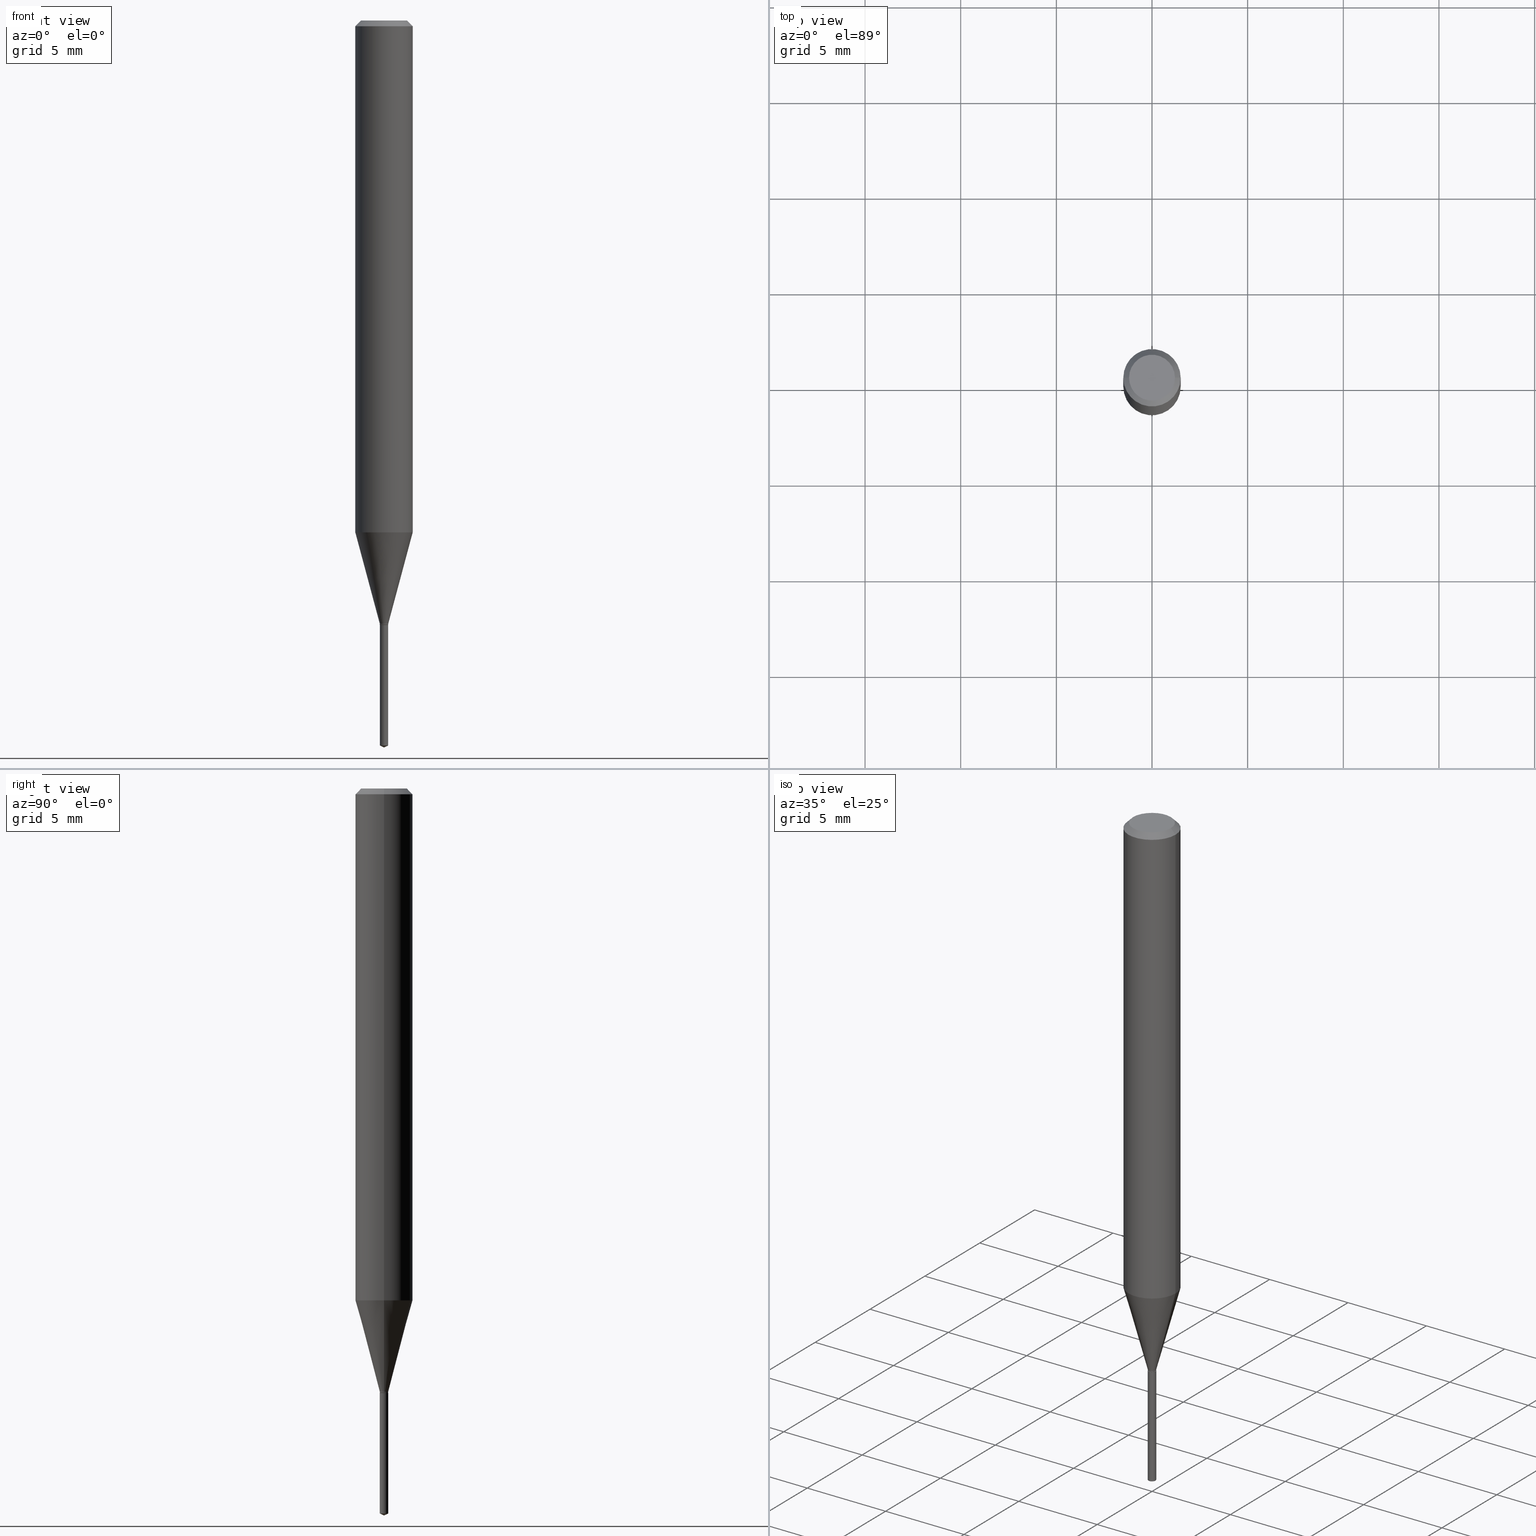
[diagram: canonical four-view strip — front | top / right | iso, engineering-drawing reading convention]
A machine part, canonical four-view strip (front | top / right | iso — engineering-drawing reading convention). The complete STEP part file that produces these views, byte-faithful:
ISO-10303-21;
HEADER;
FILE_DESCRIPTION (( 'STEP AP203' ),
    '1' );
FILE_NAME ('07763.STEP',
    '2024-04-24T02:30:58',
    ( '' ),
    ( '' ),
    'SwSTEP 2.0',
    'SolidWorks 2023',
    '' );
FILE_SCHEMA (( 'CONFIG_CONTROL_DESIGN' ));
ENDSEC;

DATA;
#1 = CARTESIAN_POINT ( 'NONE',  ( -9.261901597635378744E-28, 1.322371744356641908E-13, 37.87397874015748300 ) ) ;
#2 = EDGE_LOOP ( 'NONE', ( #78, #164, #421, #181 ) ) ;
#3 = FACE_OUTER_BOUND ( 'NONE', #88, .T. ) ;
#4 = DIRECTION ( 'NONE',  ( -6.982962677686268288E-15, -1.000000000000000000, 3.520397390770471619E-15 ) ) ;
#5 = ORIENTED_EDGE ( 'NONE', *, *, #402, .T. ) ;
#6 = LINE ( 'NONE', #241, #278 ) ;
#7 = EDGE_CURVE ( 'NONE', #167, #90, #198, .T. ) ;
#8 = EDGE_LOOP ( 'NONE', ( #195, #466 ) ) ;
#9 = CARTESIAN_POINT ( 'NONE',  ( 3.041185007371835914E-29, -4.342006192985336437E-15, -1.243600000000000039 ) ) ;
#10 = AXIS2_PLACEMENT_3D ( 'NONE', #406, #265, #228 ) ;
#11 = ORIENTED_EDGE ( 'NONE', *, *, #451, .F. ) ;
#12 = MECHANICAL_CONTEXT ( 'NONE', #200, 'mechanical' ) ;
#13 = DIRECTION ( 'NONE',  ( 1.000000000000000000, -6.982962677686220957E-15, 0.000000000000000000 ) ) ;
#14 = ORIENTED_EDGE ( 'NONE', *, *, #340, .T. ) ;
#15 = ORIENTED_EDGE ( 'NONE', *, *, #439, .F. ) ;
#16 = APPROVAL ( #322, 'UNSPECIFIED' ) ;
#17 = AXIS2_PLACEMENT_3D ( 'NONE', #289, #18, #62 ) ;
#18 = DIRECTION ( 'NONE',  ( -2.445468806185136597E-29, 3.491481338843145583E-15, 1.000000000000000000 ) ) ;
#19 = CIRCLE ( 'NONE', #369, 0.04724000000000000421 ) ;
#20 = PERSON_AND_ORGANIZATION_ROLE ( 'design_owner' ) ;
#21 = EDGE_CURVE ( 'NONE', #162, #383, #212, .T. ) ;
#22 = VERTEX_POINT ( 'NONE', #434 ) ;
#23 = APPROVAL_DATE_TIME ( #94, #16 ) ;
#24 = DIRECTION ( 'NONE',  ( -2.445468806185136597E-29, 3.491481338843145583E-15, 1.000000000000000000 ) ) ;
#25 = EDGE_CURVE ( 'NONE', #79, #383, #328, .T. ) ;
#26 = CYLINDRICAL_SURFACE ( 'NONE', #10, 0.008649999999999999703 ) ;
#27 = CONICAL_SURFACE ( 'NONE', #115, 0.008649999999999999703, 0.2617993877991500740 ) ;
#28 = DIRECTION ( 'NONE',  ( -0.7071067811866191821, 7.493145998870612907E-15, 0.7071067811864758523 ) ) ;
#29 = EDGE_CURVE ( 'NONE', #230, #90, #288, .T. ) ;
#30 = CARTESIAN_POINT ( 'NONE',  ( 4.132873053354867254E-48, -5.900647395337818946E-34, -1.690012582823346072E-19 ) ) ;
#31 = CARTESIAN_POINT ( 'NONE',  ( -6.040262716195577240E-17, -0.008650000000004345185, -1.244099999999999984 ) ) ;
#32 = AXIS2_PLACEMENT_3D ( 'NONE', #371, #264, #482 ) ;
#33 = AXIS2_PLACEMENT_3D ( 'NONE', #279, #347, #343 ) ;
#34 = CARTESIAN_POINT ( 'NONE',  ( -0.008649999999999999703, -4.276878190936301888E-15, -1.243600000000000039 ) ) ;
#35 = DIRECTION ( 'NONE',  ( 1.000000000000000000, -6.982962677686266711E-15, 4.876176775795936353E-29 ) ) ;
#36 = EDGE_CURVE ( 'NONE', #172, #383, #321, .T. ) ;
#37 = DIRECTION ( 'NONE',  ( -0.2588190451025213501, 5.211531920934551042E-15, 0.9659258262890682012 ) ) ;
#38 = VERTEX_POINT ( 'NONE', #473 ) ;
#39 = PRODUCT_RELATED_PRODUCT_CATEGORY ( 'detail', '', ( #68 ) ) ;
#40 = CARTESIAN_POINT ( 'NONE',  ( 2.576068185695256609E-29, -3.677942640361607017E-15, -1.053404639298528345 ) ) ;
#41 = EDGE_LOOP ( 'NONE', ( #141, #160, #205, #387 ) ) ;
#42 = CONICAL_SURFACE ( 'NONE', #297, 0.008149999999999999259, 0.7853981633975496424 ) ;
#43 = ADVANCED_FACE ( 'NONE', ( #64 ), #42, .T. ) ;
#44 = DIRECTION ( 'NONE',  ( -6.982962677686265133E-15, -1.000000000000000000, 0.000000000000000000 ) ) ;
#45 = CIRCLE ( 'NONE', #121, 0.008649999999999999703 ) ;
#46 = CC_DESIGN_SECURITY_CLASSIFICATION ( #87, ( #98 ) ) ;
#47 = DIRECTION ( 'NONE',  ( 0.7071067811866191821, -2.468850131083007662E-15, 0.7071067811864758523 ) ) ;
#48 = ORIENTED_EDGE ( 'NONE', *, *, #291, .T. ) ;
#49 = DIRECTION ( 'NONE',  ( -2.445468806185136597E-29, 3.491481338843145583E-15, 1.000000000000000000 ) ) ;
#50 = EDGE_LOOP ( 'NONE', ( #452, #461, #143, #102 ) ) ;
#51 = DIRECTION ( 'NONE',  ( -6.328713451373368590E-15, -0.9063077870366483824, 0.4226182617407027720 ) ) ;
#52 = AXIS2_PLACEMENT_3D ( 'NONE', #282, #424, #191 ) ;
#53 = ORGANIZATION ( 'UNSPECIFIED', 'UNSPECIFIED', '' ) ;
#54 = ORIENTED_EDGE ( 'NONE', *, *, #402, .F. ) ;
#55 = ORIENTED_EDGE ( 'NONE', *, *, #345, .T. ) ;
#56 = SECURITY_CLASSIFICATION_LEVEL ( 'unclassified' ) ;
#57 = APPROVAL ( #356, 'UNSPECIFIED' ) ;
#58 = ORIENTED_EDGE ( 'NONE', *, *, #7, .F. ) ;
#59 = DATE_AND_TIME ( #364, #412 ) ;
#60 = CIRCLE ( 'NONE', #251, 0.008649999999999999703 ) ;
#61 = CONICAL_SURFACE ( 'NONE', #185, 0.05904999999999999832, 0.7853981633974452814 ) ;
#62 = DIRECTION ( 'NONE',  ( 1.000000000000000000, -6.982962677686266711E-15, 0.000000000000000000 ) ) ;
#63 = CALENDAR_DATE ( 2024, 23, 4 ) ;
#64 = FACE_OUTER_BOUND ( 'NONE', #363, .T. ) ;
#65 = PERSON ( 'UNSPECIFIED', 'UNSPECIFIED', 'UNSPECIFIED', ('UNSPECIFIED'), ('UNSPECIFIED'), ('UNSPECIFIED') ) ;
#66 = PLANE ( 'NONE',  #96 ) ;
#67 = DIRECTION ( 'NONE',  ( -2.445468806185136597E-29, 3.491481338843145583E-15, 1.000000000000000000 ) ) ;
#68 = PRODUCT ( '07763', '07763', '', ( #12 ) ) ;
#69 = AXIS2_PLACEMENT_3D ( 'NONE', #489, #169, #13 ) ;
#70 = DIRECTION ( 'NONE',  ( -2.445468806185136597E-29, 3.491481338843145583E-15, 1.000000000000000000 ) ) ;
#71 = CARTESIAN_POINT ( 'NONE',  ( 0.008649999999999999703, -4.402408820147322827E-15, -1.243600000000000039 ) ) ;
#72 = CARTESIAN_POINT ( 'NONE',  ( -0.04724000000000000421, 3.504923541997677355E-16, -3.380025165670481712E-19 ) ) ;
#73 = DIMENSIONAL_EXPONENTS ( 1.000000000000000000, 0.000000000000000000, 0.000000000000000000, 0.000000000000000000, 0.000000000000000000, 0.000000000000000000, 0.000000000000000000 ) ;
#74 = CARTESIAN_POINT ( 'NONE',  ( 6.146194664328519809E-17, 0.008649999999995657690, -1.244099999999999984 ) ) ;
#75 = VECTOR ( 'NONE', #147, 39.37007874015748854 ) ;
#76 = ADVANCED_FACE ( 'NONE', ( #430 ), #477, .T. ) ;
#77 = DIRECTION ( 'NONE',  ( -2.445453018118844559E-29, 3.491503948252676758E-15, 1.000000000000000000 ) ) ;
#78 = ORIENTED_EDGE ( 'NONE', *, *, #135, .F. ) ;
#79 = VERTEX_POINT ( 'NONE', #72 ) ;
#80 = EDGE_CURVE ( 'NONE', #90, #167, #60, .T. ) ;
#81 = CYLINDRICAL_SURFACE ( 'NONE', #403, 0.008649999999999999703 ) ;
#82 = FACE_OUTER_BOUND ( 'NONE', #280, .T. ) ;
#83 = ORIENTED_EDGE ( 'NONE', *, *, #431, .T. ) ;
#84 = ADVANCED_FACE ( 'NONE', ( #401 ), #26, .T. ) ;
#85 = DIRECTION ( 'NONE',  ( -6.982962677686265133E-15, -1.000000000000000000, 0.000000000000000000 ) ) ;
#86 = CONICAL_SURFACE ( 'NONE', #259, 0.008649999999999999703, 0.2617993877991500740 ) ;
#87 = SECURITY_CLASSIFICATION ( '', '', #56 ) ;
#88 = EDGE_LOOP ( 'NONE', ( #11, #133, #93 ) ) ;
#89 = CARTESIAN_POINT ( 'NONE',  ( 3.648798017825315625E-29, -5.209527733608836381E-15, -1.492066438756959101 ) ) ;
#90 = VERTEX_POINT ( 'NONE', #74 ) ;
#91 = CARTESIAN_POINT ( 'NONE',  ( 3.648798017825315625E-29, -5.209527733608836381E-15, -1.492066438756959101 ) ) ;
#92 = EDGE_CURVE ( 'NONE', #383, #162, #442, .T. ) ;
#93 = ORIENTED_EDGE ( 'NONE', *, *, #368, .F. ) ;
#94 = DATE_AND_TIME ( #467, #199 ) ;
#95 = LINE ( 'NONE', #462, #304 ) ;
#96 = AXIS2_PLACEMENT_3D ( 'NONE', #30, #294, #219 ) ;
#97 = CIRCLE ( 'NONE', #443, 0.008149999999999999259 ) ;
#98 = PRODUCT_DEFINITION_FORMATION_WITH_SPECIFIED_SOURCE ( 'ANY', '', #68, .NOT_KNOWN. ) ;
#99 = ADVANCED_FACE ( 'NONE', ( #339 ), #227, .T. ) ;
#100 = ORIENTED_EDGE ( 'NONE', *, *, #352, .T. ) ;
#101 = DIRECTION ( 'NONE',  ( 1.000000000000000000, -6.982962677686220957E-15, 0.000000000000000000 ) ) ;
#102 = ORIENTED_EDGE ( 'NONE', *, *, #431, .F. ) ;
#103 = PERSON_AND_ORGANIZATION ( #65, #53 ) ;
#104 = CC_DESIGN_DATE_AND_TIME_ASSIGNMENT ( #330, #144, ( #87 ) ) ;
#105 =( NAMED_UNIT ( * ) PLANE_ANGLE_UNIT ( ) SI_UNIT ( $, .RADIAN. ) );
#106 = AXIS2_PLACEMENT_3D ( 'NONE', #207, #354, #318 ) ;
#107 = CARTESIAN_POINT ( 'NONE',  ( 6.146194664327908442E-17, 0.008649999999995655955, -1.244099999999999984 ) ) ;
#108 = PERSON_AND_ORGANIZATION ( #65, #53 ) ;
#109 = CARTESIAN_POINT ( 'NONE',  ( -6.040262716194970803E-17, -0.008650000000005209078, -1.492066438756959101 ) ) ;
#110 = DIRECTION ( 'NONE',  ( -2.445468806185136597E-29, 3.491481338843145583E-15, 1.000000000000000000 ) ) ;
#111 = DESIGN_CONTEXT ( 'detailed design', #224, 'design' ) ;
#112 = FACE_OUTER_BOUND ( 'NONE', #130, .T. ) ;
#113 = CARTESIAN_POINT ( 'NONE',  ( 0.05904999999999999832, -4.535783407291118600E-16, -0.01181000000000007218 ) ) ;
#114 = CLOSED_SHELL ( 'NONE', ( #138, #183, #99, #329, #310, #267, #204, #76, #120, #131, #233, #43 ) ) ;
#115 = AXIS2_PLACEMENT_3D ( 'NONE', #188, #152, #263 ) ;
#116 = LOCAL_TIME ( 22, 30, 58.00000000000000000, #142 ) ;
#117 = CARTESIAN_POINT ( 'NONE',  ( 0.000000000000000000, 0.000000000000000000, 0.000000000000000000 ) ) ;
#118 = CARTESIAN_POINT ( 'NONE',  ( -0.05905000000000013016, -3.258367154895266735E-15, -1.053404639298528345 ) ) ;
#119 = CARTESIAN_POINT ( 'NONE',  ( 3.042407741774928155E-29, -4.343751933654757151E-15, -1.244099999999999984 ) ) ;
#120 = ADVANCED_FACE ( 'NONE', ( #151 ), #184, .T. ) ;
#121 = AXIS2_PLACEMENT_3D ( 'NONE', #337, #70, #154 ) ;
#122 = APPROVAL_PERSON_ORGANIZATION ( #108, #16, #464 ) ;
#123 = ORIENTED_EDGE ( 'NONE', *, *, #125, .F. ) ;
#124 = DIRECTION ( 'NONE',  ( 1.000000000000000000, -6.982962677686266711E-15, 4.876185090822587894E-29 ) ) ;
#125 = EDGE_CURVE ( 'NONE', #432, #230, #148, .T. ) ;
#126 = LINE ( 'NONE', #275, #314 ) ;
#127 = EDGE_LOOP ( 'NONE', ( #232, #308, #306, #455 ) ) ;
#128 = AXIS2_PLACEMENT_3D ( 'NONE', #382, #453, #426 ) ;
#129 = DIRECTION ( 'NONE',  ( -2.445468806185136597E-29, 3.491481338843145583E-15, 1.000000000000000000 ) ) ;
#130 = EDGE_LOOP ( 'NONE', ( #238, #14, #463, #313 ) ) ;
#131 = ADVANCED_FACE ( 'NONE', ( #335 ), #66, .F. ) ;
#132 = LINE ( 'NONE', #420, #397 ) ;
#133 = ORIENTED_EDGE ( 'NONE', *, *, #125, .T. ) ;
#134 = CARTESIAN_POINT ( 'NONE',  ( 3.658642260407602849E-29, -5.223639056980828932E-15, -1.496099999999999985 ) ) ;
#135 = EDGE_CURVE ( 'NONE', #376, #162, #332, .T. ) ;
#136 = CARTESIAN_POINT ( 'NONE',  ( 3.042407741774928155E-29, -4.343751933654757151E-15, -1.244099999999999984 ) ) ;
#137 = AXIS2_PLACEMENT_3D ( 'NONE', #91, #166, #284 ) ;
#138 = ADVANCED_FACE ( 'NONE', ( #295 ), #165, .T. ) ;
#139 = VERTEX_POINT ( 'NONE', #260 ) ;
#140 = CALENDAR_DATE ( 2024, 23, 4 ) ;
#141 = ORIENTED_EDGE ( 'NONE', *, *, #340, .F. ) ;
#142 = COORDINATED_UNIVERSAL_TIME_OFFSET ( 5, 0, .BEHIND. ) ;
#143 = ORIENTED_EDGE ( 'NONE', *, *, #21, .F. ) ;
#144 = DATE_TIME_ROLE ( 'classification_date' ) ;
#145 = VECTOR ( 'NONE', #372, 39.37007874015748143 ) ;
#146 = AXIS2_PLACEMENT_3D ( 'NONE', #117, #226, #410 ) ;
#147 = DIRECTION ( 'NONE',  ( 6.439704144417024042E-15, 0.9063077870366513800, 0.4226182617406964992 ) ) ;
#148 = LINE ( 'NONE', #256, #75 ) ;
#149 = CARTESIAN_POINT ( 'NONE',  ( 0.008649999999999999703, -6.040262716198620517E-17, 4.217892911063484363E-31 ) ) ;
#150 = APPROVAL ( #472, 'UNSPECIFIED' ) ;
#151 = FACE_OUTER_BOUND ( 'NONE', #2, .T. ) ;
#152 = DIRECTION ( 'NONE',  ( -2.445468806185136597E-29, 3.491481338843145583E-15, 1.000000000000000000 ) ) ;
#153 = DIRECTION ( 'NONE',  ( 2.445468806185136597E-29, -3.491481338843145583E-15, -1.000000000000000000 ) ) ;
#154 = DIRECTION ( 'NONE',  ( 1.000000000000000000, -6.982962677686282488E-15, 0.000000000000000000 ) ) ;
#155 = EDGE_CURVE ( 'NONE', #139, #38, #292, .T. ) ;
#156 = CARTESIAN_POINT ( 'NONE',  ( 0.000000000000000000, 0.000000000000000000, 0.000000000000000000 ) ) ;
#157 = ORIENTED_EDGE ( 'NONE', *, *, #423, .T. ) ;
#158 = CIRCLE ( 'NONE', #206, 0.008649999999999999703 ) ;
#159 = DIRECTION ( 'NONE',  ( -2.445468806185136597E-29, 3.491481338843145583E-15, 1.000000000000000000 ) ) ;
#160 = ORIENTED_EDGE ( 'NONE', *, *, #155, .T. ) ;
#161 = CARTESIAN_POINT ( 'NONE',  ( 3.042407741774928155E-29, -4.343751933654757151E-15, -1.244099999999999984 ) ) ;
#162 = VERTEX_POINT ( 'NONE', #113 ) ;
#163 = DIRECTION ( 'NONE',  ( -2.445468806185136877E-29, 3.491481338843145188E-15, 1.000000000000000000 ) ) ;
#164 = ORIENTED_EDGE ( 'NONE', *, *, #345, .F. ) ;
#165 = CONICAL_SURFACE ( 'NONE', #470, 0.008149999999999999259, 0.7853981633975496424 ) ;
#166 = DIRECTION ( 'NONE',  ( -2.445453018118844559E-29, 3.491503948252676758E-15, 1.000000000000000000 ) ) ;
#167 = VERTEX_POINT ( 'NONE', #31 ) ;
#168 = CC_DESIGN_PERSON_AND_ORGANIZATION_ASSIGNMENT ( #433, #20, ( #68 ) ) ;
#169 = DIRECTION ( 'NONE',  ( -2.445468806185136597E-29, 3.491481338843145583E-15, 1.000000000000000000 ) ) ;
#170 = ORIENTED_EDGE ( 'NONE', *, *, #285, .F. ) ;
#171 = PERSON_AND_ORGANIZATION ( #65, #53 ) ;
#172 = VERTEX_POINT ( 'NONE', #118 ) ;
#173 = APPROVAL_DATE_TIME ( #283, #150 ) ;
#174 = VECTOR ( 'NONE', #287, 39.37007874015748143 ) ;
#175 = AXIS2_PLACEMENT_3D ( 'NONE', #89, #201, #85 ) ;
#176 = EDGE_LOOP ( 'NONE', ( #54, #325 ) ) ;
#177 = COORDINATED_UNIVERSAL_TIME_OFFSET ( 5, 0, .BEHIND. ) ;
#178 = DIRECTION ( 'NONE',  ( -6.982962677686265133E-15, -1.000000000000000000, 0.000000000000000000 ) ) ;
#179 = CALENDAR_DATE ( 2024, 23, 4 ) ;
#180 = DIRECTION ( 'NONE',  ( 0.000000000000000000, 0.000000000000000000, 1.000000000000000000 ) ) ;
#181 = ORIENTED_EDGE ( 'NONE', *, *, #92, .T. ) ;
#182 = PERSON_AND_ORGANIZATION_ROLE ( 'creator' ) ;
#183 = ADVANCED_FACE ( 'NONE', ( #194 ), #61, .T. ) ;
#184 = CONICAL_SURFACE ( 'NONE', #409, 0.05904999999999999832, 0.7853981633974452814 ) ;
#185 = AXIS2_PLACEMENT_3D ( 'NONE', #438, #153, #293 ) ;
#186 = DIRECTION ( 'NONE',  ( -2.445468806185136597E-29, 3.491481338843145583E-15, 1.000000000000000000 ) ) ;
#187 = EDGE_CURVE ( 'NONE', #286, #331, #45, .T. ) ;
#188 = CARTESIAN_POINT ( 'NONE',  ( 3.036049522878846484E-29, -4.334674082173764544E-15, -1.241499999999999826 ) ) ;
#189 = DIRECTION ( 'NONE',  ( -6.982962677686265133E-15, -1.000000000000000000, 0.000000000000000000 ) ) ;
#190 = FACE_OUTER_BOUND ( 'NONE', #216, .T. ) ;
#191 = DIRECTION ( 'NONE',  ( 1.000000000000000000, -6.982962677686266711E-15, 4.876176775795936353E-29 ) ) ;
#192 = CARTESIAN_POINT ( 'NONE',  ( 0.05904999999999999832, -4.463468013801466955E-16, -0.01181000000000007218 ) ) ;
#193 = CYLINDRICAL_SURFACE ( 'NONE', #146, 0.008649999999999999703 ) ;
#194 = FACE_OUTER_BOUND ( 'NONE', #274, .T. ) ;
#195 = ORIENTED_EDGE ( 'NONE', *, *, #7, .T. ) ;
#196 = DIRECTION ( 'NONE',  ( 1.000000000000000000, -6.982962677686265133E-15, 0.000000000000000000 ) ) ;
#197 = VERTEX_POINT ( 'NONE', #109 ) ;
#198 = CIRCLE ( 'NONE', #459, 0.008649999999999999703 ) ;
#199 = LOCAL_TIME ( 22, 30, 58.00000000000000000, #211 ) ;
#200 = APPLICATION_CONTEXT ( 'configuration controlled 3d designs of mechanical parts and assemblies' ) ;
#201 = DIRECTION ( 'NONE',  ( -2.445453018118844559E-29, 3.491503948252676758E-15, 1.000000000000000000 ) ) ;
#202 = ORIENTED_EDGE ( 'NONE', *, *, #135, .T. ) ;
#203 = DIRECTION ( 'NONE',  ( 0.2588190451025213501, 1.565188264969621968E-15, 0.9659258262890682012 ) ) ;
#204 = ADVANCED_FACE ( 'NONE', ( #408 ), #86, .T. ) ;
#205 = ORIENTED_EDGE ( 'NONE', *, *, #415, .T. ) ;
#206 = AXIS2_PLACEMENT_3D ( 'NONE', #9, #416, #458 ) ;
#207 = CARTESIAN_POINT ( 'NONE',  ( 2.576068185695256609E-29, -3.677942640361607017E-15, -1.053404639298528345 ) ) ;
#208 = ORIENTED_EDGE ( 'NONE', *, *, #223, .T. ) ;
#209 = ORIENTED_EDGE ( 'NONE', *, *, #29, .T. ) ;
#210 = DIRECTION ( 'NONE',  ( -2.445453018118844559E-29, 3.491503948252676758E-15, 1.000000000000000000 ) ) ;
#211 = COORDINATED_UNIVERSAL_TIME_OFFSET ( 5, 0, .BEHIND. ) ;
#212 = CIRCLE ( 'NONE', #17, 0.05904999999999999832 ) ;
#213 = AXIS2_PLACEMENT_3D ( 'NONE', #456, #49, #124 ) ;
#214 = ORIENTED_EDGE ( 'NONE', *, *, #451, .T. ) ;
#215 = PERSON_AND_ORGANIZATION_ROLE ( 'design_supplier' ) ;
#216 = EDGE_LOOP ( 'NONE', ( #240, #100, #317, #253 ) ) ;
#217 = PERSON_AND_ORGANIZATION ( #65, #53 ) ;
#218 = CARTESIAN_POINT ( 'NONE',  ( 0.000000000000000000, 0.000000000000000000, 0.000000000000000000 ) ) ;
#219 = DIRECTION ( 'NONE',  ( -1.000000000000000000, 6.982962677686265922E-15, -4.876176775795935793E-29 ) ) ;
#220 = CC_DESIGN_PERSON_AND_ORGANIZATION_ASSIGNMENT ( #326, #474, ( #87 ) ) ;
#221 = AXIS2_PLACEMENT_3D ( 'NONE', #40, #273, #196 ) ;
#222 = DIRECTION ( 'NONE',  ( 1.000000000000000000, -6.982962677686226479E-15, 0.000000000000000000 ) ) ;
#223 = EDGE_CURVE ( 'NONE', #379, #286, #300, .T. ) ;
#224 = APPLICATION_CONTEXT ( 'configuration controlled 3d designs of mechanical parts and assemblies' ) ;
#225 = CARTESIAN_POINT ( 'NONE',  ( 2.888098660104664204E-31, -4.123439461173780263E-17, -0.01181000000000007218 ) ) ;
#226 = DIRECTION ( 'NONE',  ( -2.445468806185136597E-29, 3.491481338843145583E-15, 1.000000000000000000 ) ) ;
#227 = CYLINDRICAL_SURFACE ( 'NONE', #350, 0.05905000000000006771 ) ;
#228 = DIRECTION ( 'NONE',  ( -6.982962677686265133E-15, -1.000000000000000000, 0.000000000000000000 ) ) ;
#229 = AXIS2_PLACEMENT_3D ( 'NONE', #156, #341, #302 ) ;
#230 = VERTEX_POINT ( 'NONE', #404 ) ;
#231 = CARTESIAN_POINT ( 'NONE',  ( -6.040262716195577240E-17, -0.008650000000004345185, -1.244099999999999984 ) ) ;
#232 = ORIENTED_EDGE ( 'NONE', *, *, #29, .F. ) ;
#233 = ADVANCED_FACE ( 'NONE', ( #445 ), #447, .F. ) ;
#234 = DIRECTION ( 'NONE',  ( -2.445453018118844559E-29, 3.491503948252676758E-15, 1.000000000000000000 ) ) ;
#235 = ORIENTED_EDGE ( 'NONE', *, *, #352, .F. ) ;
#236 = AXIS2_PLACEMENT_3D ( 'NONE', #441, #67, #222 ) ;
#237 = CARTESIAN_POINT ( 'NONE',  ( 3.658642260407602849E-29, -5.223639056980828932E-15, -1.496099999999999985 ) ) ;
#238 = ORIENTED_EDGE ( 'NONE', *, *, #270, .T. ) ;
#239 = PLANE ( 'NONE',  #128 ) ;
#240 = ORIENTED_EDGE ( 'NONE', *, *, #439, .T. ) ;
#241 = CARTESIAN_POINT ( 'NONE',  ( 0.05905000000000006771, -4.123439461173745257E-16, 2.879382386107503723E-30 ) ) ;
#242 = ORIENTED_EDGE ( 'NONE', *, *, #187, .F. ) ;
#243 = COORDINATED_UNIVERSAL_TIME_OFFSET ( 5, 0, .BEHIND. ) ;
#244 = CONICAL_SURFACE ( 'NONE', #33, 84.42940631927390882, 1.134464013796314008 ) ;
#245 = CARTESIAN_POINT ( 'NONE',  ( 0.05905000000000013016, -4.090286586478981149E-15, -1.053404639298528345 ) ) ;
#246 = EDGE_LOOP ( 'NONE', ( #235, #392, #48, #344 ) ) ;
#247 = CARTESIAN_POINT ( 'NONE',  ( -0.05904999999999999832, 3.711095515056362547E-16, -0.01181000000000007218 ) ) ;
#248 = APPLICATION_PROTOCOL_DEFINITION ( 'international standard', 'config_control_design', 1994, #200 ) ;
#249 = ORIENTED_EDGE ( 'NONE', *, *, #36, .F. ) ;
#250 = COORDINATED_UNIVERSAL_TIME_OFFSET ( 5, 0, .BEHIND. ) ;
#251 = AXIS2_PLACEMENT_3D ( 'NONE', #334, #257, #189 ) ;
#252 = CIRCLE ( 'NONE', #351, 0.008649999999999999703 ) ;
#253 = ORIENTED_EDGE ( 'NONE', *, *, #291, .F. ) ;
#254 = SHAPE_DEFINITION_REPRESENTATION ( #269, #266 ) ;
#255 = ADVANCED_FACE ( 'NONE', ( #82 ), #378, .T. ) ;
#256 = CARTESIAN_POINT ( 'NONE',  ( 3.658681888747289821E-29, -5.223582800248033507E-15, -1.496099999999999985 ) ) ;
#257 = DIRECTION ( 'NONE',  ( -2.445453018118844559E-29, 3.491503948252676758E-15, 1.000000000000000000 ) ) ;
#258 = DIRECTION ( 'NONE',  ( -2.445468806185136877E-29, 3.491481338843145188E-15, 1.000000000000000000 ) ) ;
#259 = AXIS2_PLACEMENT_3D ( 'NONE', #440, #110, #299 ) ;
#260 = CARTESIAN_POINT ( 'NONE',  ( -0.008649999999999999703, -4.276878190936301888E-15, -1.241499999999999826 ) ) ;
#261 = APPROVAL_PERSON_ORGANIZATION ( #476, #57, #429 ) ;
#262 = CC_DESIGN_DATE_AND_TIME_ASSIGNMENT ( #59, #366, ( #320 ) ) ;
#263 = DIRECTION ( 'NONE',  ( 1.000000000000000000, -6.982962677686226479E-15, 0.000000000000000000 ) ) ;
#264 = DIRECTION ( 'NONE',  ( -2.445468806185136597E-29, 3.491481338843145583E-15, 1.000000000000000000 ) ) ;
#265 = DIRECTION ( 'NONE',  ( -2.445453018118844559E-29, 3.491503948252676758E-15, 1.000000000000000000 ) ) ;
#266 = ADVANCED_BREP_SHAPE_REPRESENTATION ( '07763', ( #390, #384, #460 ), #362 ) ;
#267 = ADVANCED_FACE ( 'NONE', ( #348 ), #276, .T. ) ;
#268 = AXIS2_PLACEMENT_3D ( 'NONE', #1, #77, #4 ) ;
#269 = PRODUCT_DEFINITION_SHAPE ( 'NONE', 'NONE',  #320 ) ;
#270 = EDGE_CURVE ( 'NONE', #38, #139, #252, .T. ) ;
#271 = DIRECTION ( 'NONE',  ( 1.000000000000000000, -6.982962677686265922E-15, 4.876176775795935793E-29 ) ) ;
#272 = ORIENTED_EDGE ( 'NONE', *, *, #223, .F. ) ;
#273 = DIRECTION ( 'NONE',  ( -2.445468806185136597E-29, 3.491481338843145583E-15, 1.000000000000000000 ) ) ;
#274 = EDGE_LOOP ( 'NONE', ( #342, #202, #311, #457 ) ) ;
#275 = CARTESIAN_POINT ( 'NONE',  ( 0.008649999999999999703, -4.395076709335750145E-15, -1.241499999999999826 ) ) ;
#276 = CYLINDRICAL_SURFACE ( 'NONE', #229, 0.008649999999999999703 ) ;
#277 = EDGE_LOOP ( 'NONE', ( #55, #157 ) ) ;
#278 = VECTOR ( 'NONE', #385, 39.37007874015748143 ) ;
#279 = CARTESIAN_POINT ( 'NONE',  ( -9.261901597635378744E-28, 1.322371744356641908E-13, 37.87397874015748300 ) ) ;
#280 = EDGE_LOOP ( 'NONE', ( #123, #214, #414 ) ) ;
#281 = CARTESIAN_POINT ( 'NONE',  ( 8.265746106709734507E-48, -1.180129479067563789E-33, -3.380025165646692144E-19 ) ) ;
#282 = CARTESIAN_POINT ( 'NONE',  ( 0.000000000000000000, 0.000000000000000000, 0.000000000000000000 ) ) ;
#283 = DATE_AND_TIME ( #63, #353 ) ;
#284 = DIRECTION ( 'NONE',  ( -6.982962677686265133E-15, -1.000000000000000000, 0.000000000000000000 ) ) ;
#285 = EDGE_CURVE ( 'NONE', #197, #167, #405, .T. ) ;
#286 = VERTEX_POINT ( 'NONE', #34 ) ;
#287 = DIRECTION ( 'NONE',  ( -2.445468806185136877E-29, 3.491481338843145188E-15, 1.000000000000000000 ) ) ;
#288 = LINE ( 'NONE', #107, #468 ) ;
#289 = CARTESIAN_POINT ( 'NONE',  ( 2.888098660104664204E-31, -4.123439461173780263E-17, -0.01181000000000007218 ) ) ;
#290 = DATE_AND_TIME ( #140, #315 ) ;
#291 = EDGE_CURVE ( 'NONE', #331, #38, #333, .T. ) ;
#292 = CIRCLE ( 'NONE', #236, 0.008649999999999999703 ) ;
#293 = DIRECTION ( 'NONE',  ( -1.000000000000000000, 6.982962677686266711E-15, 0.000000000000000000 ) ) ;
#294 = DIRECTION ( 'NONE',  ( 2.438088387897960049E-29, -3.491481338843145188E-15, -1.000000000000000000 ) ) ;
#295 = FACE_OUTER_BOUND ( 'NONE', #355, .T. ) ;
#296 = DIRECTION ( 'NONE',  ( 1.000000000000000000, -6.982962677686226479E-15, 0.000000000000000000 ) ) ;
#297 = AXIS2_PLACEMENT_3D ( 'NONE', #365, #24, #101 ) ;
#298 = VECTOR ( 'NONE', #28, 39.37007874015748143 ) ;
#299 = DIRECTION ( 'NONE',  ( 1.000000000000000000, -6.982962677686226479E-15, 0.000000000000000000 ) ) ;
#300 = LINE ( 'NONE', #370, #298 ) ;
#301 = DIRECTION ( 'NONE',  ( -2.445468806185136597E-29, 3.491481338843145583E-15, 1.000000000000000000 ) ) ;
#302 = DIRECTION ( 'NONE',  ( 1.000000000000000000, -6.982962677686266711E-15, 4.876176775795935793E-29 ) ) ;
#303 = CC_DESIGN_PERSON_AND_ORGANIZATION_ASSIGNMENT ( #425, #215, ( #98 ) ) ;
#304 = VECTOR ( 'NONE', #163, 39.37007874015748143 ) ;
#305 = APPROVAL_PERSON_ORGANIZATION ( #171, #150, #359 ) ;
#306 = ORIENTED_EDGE ( 'NONE', *, *, #285, .T. ) ;
#307 = LINE ( 'NONE', #134, #336 ) ;
#308 = ORIENTED_EDGE ( 'NONE', *, *, #357, .T. ) ;
#309 =( LENGTH_UNIT ( ) NAMED_UNIT ( * ) SI_UNIT ( $, .METRE. ) );
#310 = ADVANCED_FACE ( 'NONE', ( #190 ), #193, .T. ) ;
#311 = ORIENTED_EDGE ( 'NONE', *, *, #21, .T. ) ;
#312 = CARTESIAN_POINT ( 'NONE',  ( 0.04724000000000000421, -3.852183633974369345E-16, -3.380025165621689721E-19 ) ) ;
#313 = ORIENTED_EDGE ( 'NONE', *, *, #415, .F. ) ;
#314 = VECTOR ( 'NONE', #203, 39.37007874015747433 ) ;
#315 = LOCAL_TIME ( 22, 30, 58.00000000000000000, #243 ) ;
#316 = CARTESIAN_POINT ( 'NONE',  ( -0.05904999999999999832, -1.440013032020331894E-15, -0.01181000000000007218 ) ) ;
#317 = ORIENTED_EDGE ( 'NONE', *, *, #270, .F. ) ;
#318 = DIRECTION ( 'NONE',  ( 1.000000000000000000, -6.982962677686265133E-15, 0.000000000000000000 ) ) ;
#319 = ORIENTED_EDGE ( 'NONE', *, *, #394, .T. ) ;
#320 = PRODUCT_DEFINITION ( 'UNKNOWN', '', #98, #111 ) ;
#321 = LINE ( 'NONE', #469, #174 ) ;
#322 = APPROVAL_STATUS ( 'not_yet_approved' ) ;
#323 = VECTOR ( 'NONE', #258, 39.37007874015748143 ) ;
#324 =( CONVERSION_BASED_UNIT ( 'INCH', #327 ) LENGTH_UNIT ( ) NAMED_UNIT ( #73 ) );
#325 = ORIENTED_EDGE ( 'NONE', *, *, #394, .F. ) ;
#326 = PERSON_AND_ORGANIZATION ( #65, #53 ) ;
#327 = LENGTH_MEASURE_WITH_UNIT ( LENGTH_MEASURE( 0.02539999999999999897 ), #309 );
#328 = LINE ( 'NONE', #247, #483 ) ;
#329 = ADVANCED_FACE ( 'NONE', ( #112 ), #27, .T. ) ;
#330 = DATE_AND_TIME ( #179, #116 ) ;
#331 = VERTEX_POINT ( 'NONE', #71 ) ;
#332 = LINE ( 'NONE', #192, #145 ) ;
#333 = LINE ( 'NONE', #149, #323 ) ;
#334 = CARTESIAN_POINT ( 'NONE',  ( 3.042407741774928155E-29, -4.343751933654757151E-15, -1.244099999999999984 ) ) ;
#335 = FACE_OUTER_BOUND ( 'NONE', #277, .T. ) ;
#336 = VECTOR ( 'NONE', #51, 39.37007874015748143 ) ;
#337 = CARTESIAN_POINT ( 'NONE',  ( 3.041185007371835914E-29, -4.342006192985336437E-15, -1.243600000000000039 ) ) ;
#338 = LINE ( 'NONE', #375, #490 ) ;
#339 = FACE_OUTER_BOUND ( 'NONE', #50, .T. ) ;
#340 = EDGE_CURVE ( 'NONE', #139, #172, #338, .T. ) ;
#341 = DIRECTION ( 'NONE',  ( -2.445468806185136597E-29, 3.491481338843145583E-15, 1.000000000000000000 ) ) ;
#342 = ORIENTED_EDGE ( 'NONE', *, *, #423, .F. ) ;
#343 = DIRECTION ( 'NONE',  ( -6.982962677686268288E-15, -1.000000000000000000, 3.520397390770471619E-15 ) ) ;
#344 = ORIENTED_EDGE ( 'NONE', *, *, #155, .F. ) ;
#345 = EDGE_CURVE ( 'NONE', #79, #376, #417, .T. ) ;
#346 = ORIENTED_EDGE ( 'NONE', *, *, #368, .T. ) ;
#347 = DIRECTION ( 'NONE',  ( -2.445453018118844559E-29, 3.491503948252676758E-15, 1.000000000000000000 ) ) ;
#348 = FACE_OUTER_BOUND ( 'NONE', #246, .T. ) ;
#349 = DIRECTION ( 'NONE',  ( 1.000000000000000000, -6.982962677686220957E-15, 0.000000000000000000 ) ) ;
#350 = AXIS2_PLACEMENT_3D ( 'NONE', #481, #186, #35 ) ;
#351 = AXIS2_PLACEMENT_3D ( 'NONE', #450, #301, #296 ) ;
#352 = EDGE_CURVE ( 'NONE', #286, #139, #95, .T. ) ;
#353 = LOCAL_TIME ( 22, 30, 58.00000000000000000, #177 ) ;
#354 = DIRECTION ( 'NONE',  ( -2.445468806185136597E-29, 3.491481338843145583E-15, 1.000000000000000000 ) ) ;
#355 = EDGE_LOOP ( 'NONE', ( #5, #208, #15, #395 ) ) ;
#356 = APPROVAL_STATUS ( 'not_yet_approved' ) ;
#357 = EDGE_CURVE ( 'NONE', #230, #197, #484, .T. ) ;
#358 = ORIENTED_EDGE ( 'NONE', *, *, #92, .F. ) ;
#359 = APPROVAL_ROLE ( '' ) ;
#360 =( NAMED_UNIT ( * ) SI_UNIT ( $, .STERADIAN. ) SOLID_ANGLE_UNIT ( ) );
#361 = VERTEX_POINT ( 'NONE', #245 ) ;
#362 =( GEOMETRIC_REPRESENTATION_CONTEXT ( 3 ) GLOBAL_UNCERTAINTY_ASSIGNED_CONTEXT ( ( #448 ) ) GLOBAL_UNIT_ASSIGNED_CONTEXT ( ( #324, #105, #360 ) ) REPRESENTATION_CONTEXT ( 'NONE', 'WORKASPACE' ) );
#363 = EDGE_LOOP ( 'NONE', ( #272, #319, #389, #242 ) ) ;
#364 = CALENDAR_DATE ( 2024, 23, 4 ) ;
#365 = CARTESIAN_POINT ( 'NONE',  ( 3.042407741774928155E-29, -4.343751933654757151E-15, -1.244099999999999984 ) ) ;
#366 = DATE_TIME_ROLE ( 'creation_date' ) ;
#367 = DIRECTION ( 'NONE',  ( 1.000000000000000000, -6.982962677686220957E-15, 0.000000000000000000 ) ) ;
#368 = EDGE_CURVE ( 'NONE', #197, #230, #436, .T. ) ;
#369 = AXIS2_PLACEMENT_3D ( 'NONE', #281, #159, #422 ) ;
#370 = CARTESIAN_POINT ( 'NONE',  ( -0.008149999999999999259, -4.285842700690309053E-15, -1.244099999999999984 ) ) ;
#371 = CARTESIAN_POINT ( 'NONE',  ( 2.888098660104664204E-31, -4.123439461173780263E-17, -0.01181000000000007218 ) ) ;
#372 = DIRECTION ( 'NONE',  ( 0.7071067811865453523, -7.319954787623248157E-15, -0.7071067811865496822 ) ) ;
#373 = AXIS2_PLACEMENT_3D ( 'NONE', #119, #418, #271 ) ;
#374 = DIRECTION ( 'NONE',  ( -2.445468806185136597E-29, 3.491481338843145583E-15, 1.000000000000000000 ) ) ;
#375 = CARTESIAN_POINT ( 'NONE',  ( -0.008649999999999999703, -4.273212135530516336E-15, -1.241499999999999826 ) ) ;
#376 = VERTEX_POINT ( 'NONE', #312 ) ;
#377 = CARTESIAN_POINT ( 'NONE',  ( 3.042407741774928155E-29, -4.343751933654757151E-15, -1.244099999999999984 ) ) ;
#378 = CONICAL_SURFACE ( 'NONE', #268, 84.42940631927390882, 1.134464013796314008 ) ;
#379 = VERTEX_POINT ( 'NONE', #465 ) ;
#380 = FACE_OUTER_BOUND ( 'NONE', #8, .T. ) ;
#381 = DIRECTION ( 'NONE',  ( 1.000000000000000000, 0.000000000000000000, 0.000000000000000000 ) ) ;
#382 = CARTESIAN_POINT ( 'NONE',  ( 3.042407741774928155E-29, -4.343751933654757151E-15, -1.244099999999999984 ) ) ;
#383 = VERTEX_POINT ( 'NONE', #316 ) ;
#384 = MANIFOLD_SOLID_BREP ( 'Body-Move/Copy2[2]', #114 ) ;
#385 = DIRECTION ( 'NONE',  ( -2.445468806185136877E-29, 3.491481338843145188E-15, 1.000000000000000000 ) ) ;
#386 = ADVANCED_FACE ( 'NONE', ( #3 ), #244, .T. ) ;
#387 = ORIENTED_EDGE ( 'NONE', *, *, #454, .F. ) ;
#388 = VECTOR ( 'NONE', #449, 39.37007874015748143 ) ;
#389 = ORIENTED_EDGE ( 'NONE', *, *, #391, .T. ) ;
#390 = MANIFOLD_SOLID_BREP ( 'Body-Move/Copy2[1]', #396 ) ;
#391 = EDGE_CURVE ( 'NONE', #22, #331, #132, .T. ) ;
#392 = ORIENTED_EDGE ( 'NONE', *, *, #187, .T. ) ;
#393 = APPLICATION_PROTOCOL_DEFINITION ( 'international standard', 'config_control_design', 1994, #224 ) ;
#394 = EDGE_CURVE ( 'NONE', #379, #22, #97, .T. ) ;
#395 = ORIENTED_EDGE ( 'NONE', *, *, #391, .F. ) ;
#396 = CLOSED_SHELL ( 'NONE', ( #488, #386, #255, #84, #479 ) ) ;
#397 = VECTOR ( 'NONE', #47, 39.37007874015748143 ) ;
#398 = DIRECTION ( 'NONE',  ( -2.445453018118844278E-29, 3.491503948252676363E-15, 1.000000000000000000 ) ) ;
#399 = PERSON_AND_ORGANIZATION_ROLE ( 'creator' ) ;
#400 = DIRECTION ( 'NONE',  ( -1.000000000000000000, 6.982962677686266711E-15, 0.000000000000000000 ) ) ;
#401 = FACE_OUTER_BOUND ( 'NONE', #127, .T. ) ;
#402 = EDGE_CURVE ( 'NONE', #22, #379, #411, .T. ) ;
#403 = AXIS2_PLACEMENT_3D ( 'NONE', #377, #234, #44 ) ;
#404 = CARTESIAN_POINT ( 'NONE',  ( 6.146194664328513646E-17, 0.008649999999994788594, -1.492066438756959101 ) ) ;
#405 = LINE ( 'NONE', #231, #388 ) ;
#406 = CARTESIAN_POINT ( 'NONE',  ( 3.042407741774928155E-29, -4.343751933654757151E-15, -1.244099999999999984 ) ) ;
#407 = CC_DESIGN_PERSON_AND_ORGANIZATION_ASSIGNMENT ( #103, #182, ( #320 ) ) ;
#408 = FACE_OUTER_BOUND ( 'NONE', #41, .T. ) ;
#409 = AXIS2_PLACEMENT_3D ( 'NONE', #225, #485, #400 ) ;
#410 = DIRECTION ( 'NONE',  ( 1.000000000000000000, -6.982962677686266711E-15, 4.876176775795935793E-29 ) ) ;
#411 = CIRCLE ( 'NONE', #69, 0.008149999999999999259 ) ;
#412 = LOCAL_TIME ( 22, 30, 58.00000000000000000, #250 ) ;
#413 = FACE_OUTER_BOUND ( 'NONE', #487, .T. ) ;
#414 = ORIENTED_EDGE ( 'NONE', *, *, #357, .F. ) ;
#415 = EDGE_CURVE ( 'NONE', #38, #361, #126, .T. ) ;
#416 = DIRECTION ( 'NONE',  ( -2.445468806185136597E-29, 3.491481338843145583E-15, 1.000000000000000000 ) ) ;
#417 = CIRCLE ( 'NONE', #213, 0.04724000000000000421 ) ;
#418 = DIRECTION ( 'NONE',  ( -2.438088387897960049E-29, 3.491481338843145188E-15, 1.000000000000000000 ) ) ;
#419 = ORIENTED_EDGE ( 'NONE', *, *, #454, .T. ) ;
#420 = CARTESIAN_POINT ( 'NONE',  ( 0.008149999999999999259, -4.400663079477900534E-15, -1.244099999999999984 ) ) ;
#421 = ORIENTED_EDGE ( 'NONE', *, *, #25, .T. ) ;
#422 = DIRECTION ( 'NONE',  ( 1.000000000000000000, -6.982962677686266711E-15, 4.876185090822587894E-29 ) ) ;
#423 = EDGE_CURVE ( 'NONE', #376, #79, #19, .T. ) ;
#424 = DIRECTION ( 'NONE',  ( -2.445468806185136597E-29, 3.491481338843145583E-15, 1.000000000000000000 ) ) ;
#425 = PERSON_AND_ORGANIZATION ( #65, #53 ) ;
#426 = DIRECTION ( 'NONE',  ( 6.982962677686265922E-15, 1.000000000000000000, -3.491503948252676363E-15 ) ) ;
#427 = DIRECTION ( 'NONE',  ( -0.7071067811865453523, 2.468850131082234184E-15, -0.7071067811865496822 ) ) ;
#428 = CIRCLE ( 'NONE', #221, 0.05905000000000013016 ) ;
#429 = APPROVAL_ROLE ( '' ) ;
#430 = FACE_OUTER_BOUND ( 'NONE', #475, .T. ) ;
#431 = EDGE_CURVE ( 'NONE', #361, #162, #6, .T. ) ;
#432 = VERTEX_POINT ( 'NONE', #237 ) ;
#433 = PERSON_AND_ORGANIZATION ( #65, #53 ) ;
#434 = CARTESIAN_POINT ( 'NONE',  ( 0.008149999999999999259, -4.400663079477900534E-15, -1.244099999999999984 ) ) ;
#435 = APPROVAL_DATE_TIME ( #290, #57 ) ;
#436 = CIRCLE ( 'NONE', #175, 0.008649999999999999703 ) ;
#437 = CC_DESIGN_APPROVAL ( #57, ( #87 ) ) ;
#438 = CARTESIAN_POINT ( 'NONE',  ( 2.888098660104664204E-31, -4.123439461173780263E-17, -0.01181000000000007218 ) ) ;
#439 = EDGE_CURVE ( 'NONE', #331, #286, #158, .T. ) ;
#440 = CARTESIAN_POINT ( 'NONE',  ( 3.036049522878846484E-29, -4.334674082173764544E-15, -1.241499999999999826 ) ) ;
#441 = CARTESIAN_POINT ( 'NONE',  ( 3.036049522878846484E-29, -4.334674082173764544E-15, -1.241499999999999826 ) ) ;
#442 = CIRCLE ( 'NONE', #32, 0.05904999999999999832 ) ;
#443 = AXIS2_PLACEMENT_3D ( 'NONE', #161, #129, #349 ) ;
#444 = CC_DESIGN_APPROVAL ( #150, ( #320 ) ) ;
#445 = FACE_OUTER_BOUND ( 'NONE', #176, .T. ) ;
#446 = CC_DESIGN_PERSON_AND_ORGANIZATION_ASSIGNMENT ( #217, #399, ( #98 ) ) ;
#447 = PLANE ( 'NONE',  #373 ) ;
#448 = UNCERTAINTY_MEASURE_WITH_UNIT (LENGTH_MEASURE( 1.000000000000000082E-05 ), #324, 'distance_accuracy_value', 'NONE');
#449 = DIRECTION ( 'NONE',  ( -2.445453018118844278E-29, 3.491503948252676363E-15, 1.000000000000000000 ) ) ;
#450 = CARTESIAN_POINT ( 'NONE',  ( 3.036049522878846484E-29, -4.334674082173764544E-15, -1.241499999999999826 ) ) ;
#451 = EDGE_CURVE ( 'NONE', #432, #197, #307, .T. ) ;
#452 = ORIENTED_EDGE ( 'NONE', *, *, #486, .T. ) ;
#453 = DIRECTION ( 'NONE',  ( 2.445453018118844559E-29, -3.491503948252676363E-15, -1.000000000000000000 ) ) ;
#454 = EDGE_CURVE ( 'NONE', #172, #361, #478, .T. ) ;
#455 = ORIENTED_EDGE ( 'NONE', *, *, #80, .F. ) ;
#456 = CARTESIAN_POINT ( 'NONE',  ( 8.265746106709734507E-48, -1.180129479067563789E-33, -3.380025165646692144E-19 ) ) ;
#457 = ORIENTED_EDGE ( 'NONE', *, *, #25, .F. ) ;
#458 = DIRECTION ( 'NONE',  ( 1.000000000000000000, -6.982962677686282488E-15, 0.000000000000000000 ) ) ;
#459 = AXIS2_PLACEMENT_3D ( 'NONE', #136, #210, #178 ) ;
#460 = AXIS2_PLACEMENT_3D ( 'NONE', #218, #180, #381 ) ;
#461 = ORIENTED_EDGE ( 'NONE', *, *, #36, .T. ) ;
#462 = CARTESIAN_POINT ( 'NONE',  ( -0.008649999999999999703, 6.146194664324866397E-17, -4.254878853070493339E-31 ) ) ;
#463 = ORIENTED_EDGE ( 'NONE', *, *, #486, .F. ) ;
#464 = APPROVAL_ROLE ( '' ) ;
#465 = CARTESIAN_POINT ( 'NONE',  ( -0.008149999999999999259, -4.283193473516197852E-15, -1.244099999999999984 ) ) ;
#466 = ORIENTED_EDGE ( 'NONE', *, *, #80, .T. ) ;
#467 = CALENDAR_DATE ( 2024, 23, 4 ) ;
#468 = VECTOR ( 'NONE', #398, 39.37007874015748143 ) ;
#469 = CARTESIAN_POINT ( 'NONE',  ( -0.05905000000000006771, 4.195754854663396409E-16, -2.904631170795525045E-30 ) ) ;
#470 = AXIS2_PLACEMENT_3D ( 'NONE', #480, #374, #367 ) ;
#471 = CC_DESIGN_APPROVAL ( #16, ( #98 ) ) ;
#472 = APPROVAL_STATUS ( 'not_yet_approved' ) ;
#473 = CARTESIAN_POINT ( 'NONE',  ( 0.008649999999999999703, -4.395076709335750145E-15, -1.241499999999999826 ) ) ;
#474 = PERSON_AND_ORGANIZATION_ROLE ( 'classification_officer' ) ;
#475 = EDGE_LOOP ( 'NONE', ( #249, #419, #83, #358 ) ) ;
#476 = PERSON_AND_ORGANIZATION ( #65, #53 ) ;
#477 = CYLINDRICAL_SURFACE ( 'NONE', #52, 0.05905000000000006771 ) ;
#478 = CIRCLE ( 'NONE', #106, 0.05905000000000013016 ) ;
#479 = ADVANCED_FACE ( 'NONE', ( #380 ), #239, .F. ) ;
#480 = CARTESIAN_POINT ( 'NONE',  ( 3.042407741774928155E-29, -4.343751933654757151E-15, -1.244099999999999984 ) ) ;
#481 = CARTESIAN_POINT ( 'NONE',  ( 0.000000000000000000, 0.000000000000000000, 0.000000000000000000 ) ) ;
#482 = DIRECTION ( 'NONE',  ( 1.000000000000000000, -6.982962677686266711E-15, 0.000000000000000000 ) ) ;
#483 = VECTOR ( 'NONE', #427, 39.37007874015748143 ) ;
#484 = CIRCLE ( 'NONE', #137, 0.008649999999999999703 ) ;
#485 = DIRECTION ( 'NONE',  ( 2.445468806185136597E-29, -3.491481338843145583E-15, -1.000000000000000000 ) ) ;
#486 = EDGE_CURVE ( 'NONE', #361, #172, #428, .T. ) ;
#487 = EDGE_LOOP ( 'NONE', ( #346, #209, #58, #170 ) ) ;
#488 = ADVANCED_FACE ( 'NONE', ( #413 ), #81, .T. ) ;
#489 = CARTESIAN_POINT ( 'NONE',  ( 3.042407741774928155E-29, -4.343751933654757151E-15, -1.244099999999999984 ) ) ;
#490 = VECTOR ( 'NONE', #37, 39.37007874015747433 ) ;
ENDSEC;
END-ISO-10303-21;
